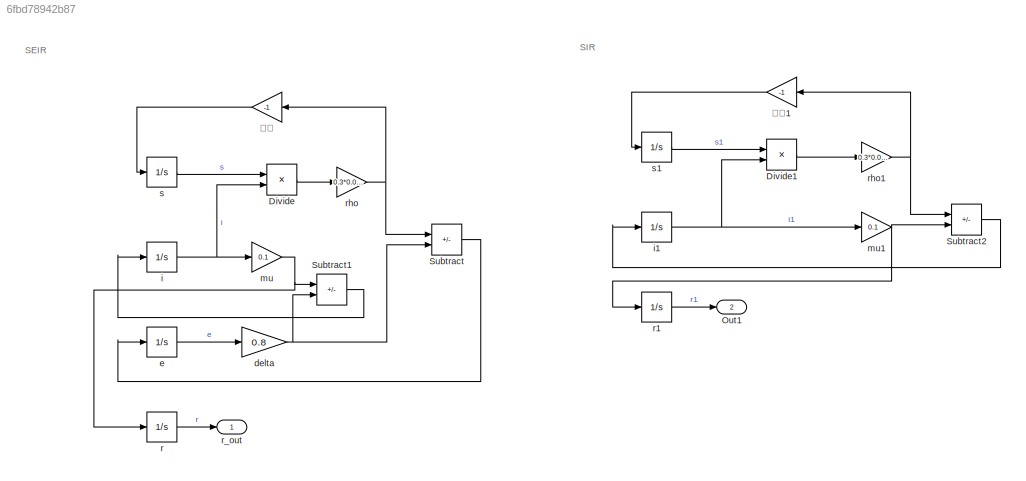
MODEL slx_6fbd78942b87
KIND model
CONFIG AbsTol = auto
CONFIG EnableMultiTasking = off
CONFIG FixedStep = auto
CONFIG MaxStep = auto
CONFIG MinStep = auto
CONFIG RelTol = 1e-3
CONFIG SampleTimeConstraint = Unconstrained
CONFIG SolverName = VariableStepAuto
CONFIG StartTime = 0.0
CONFIG StopTime = 120
BLOCK [Product] Divide
  Inputs = **
  Ports = [2, 1]
BLOCK [Product] Divide1
  Inputs = **
  Ports = [2, 1]
BLOCK [Outport] Out1
  Port = 2
BLOCK [Sum] Subtract
  IconShape = rectangular
  Inputs = +-
  Ports = [2, 1]
BLOCK [Sum] Subtract1
  IconShape = rectangular
  Inputs = -+
  Ports = [2, 1]
BLOCK [Sum] Subtract2
  IconShape = rectangular
  Inputs = +-
  Ports = [2, 1]
BLOCK [Gain] delta
  Gain = 0.8
BLOCK [Integrator] e
  InitialCondition = 4
  Ports = [1, 1]
BLOCK [Integrator] i
  InitialCondition = 1
  Ports = [1, 1]
BLOCK [Integrator] i1
  InitialCondition = 1
  Ports = [1, 1]
BLOCK [Gain] mu
  Gain = 0.1
BLOCK [Gain] mu1
  Gain = 0.1
BLOCK [Integrator] r
  Ports = [1, 1]
BLOCK [Integrator] r1
  Ports = [1, 1]
BLOCK [Outport] r_out
BLOCK [Gain] rho
  Gain = 0.3*0.0001
BLOCK [Gain] rho1
  Gain = 0.3*0.0001
BLOCK [Integrator] s
  InitialCondition = 10000
  Ports = [1, 1]
BLOCK [Integrator] s1
  InitialCondition = 10000
  Ports = [1, 1]
BLOCK [Gain] 系数
  Gain = -1
  NameLocation = top
BLOCK [Gain] 系数1
  Gain = -1
  NameLocation = top
ANNOTATION (root): SEIR
ANNOTATION (root): SIR
LINE Divide1:1 -> rho1:1
LINE Divide:1 -> rho:1
LINE Subtract1:1 -> i:1
LINE Subtract2:1 -> i1:1
LINE Subtract:1 -> e:1
NET delta:1 -> Subtract1:2, Subtract:2
LINE e:1 -> delta:1
NET i1:1 -> Divide1:2, mu1:1
NET i:1 -> Divide:2, mu:1
NET mu1:1 -> Subtract2:2, r1:1
NET mu:1 -> Subtract1:1, r:1
LINE r1:1 -> Out1:1
LINE r:1 -> r_out:1
NET rho1:1 -> Subtract2:1, 系数1:1
NET rho:1 -> Subtract:1, 系数:1
LINE s1:1 -> Divide1:1
LINE s:1 -> Divide:1
LINE 系数1:1 -> s1:1
LINE 系数:1 -> s:1
note: NET lines group one-source signal fan-out (src -> all destinations, sorted); 1:1 wires keep LINE
